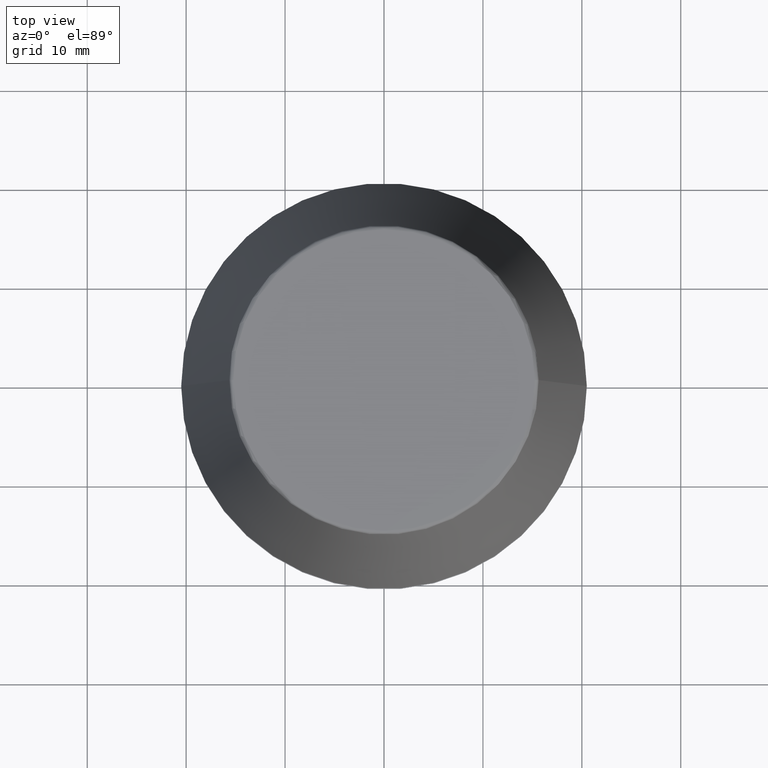
[diagram: clean part render]
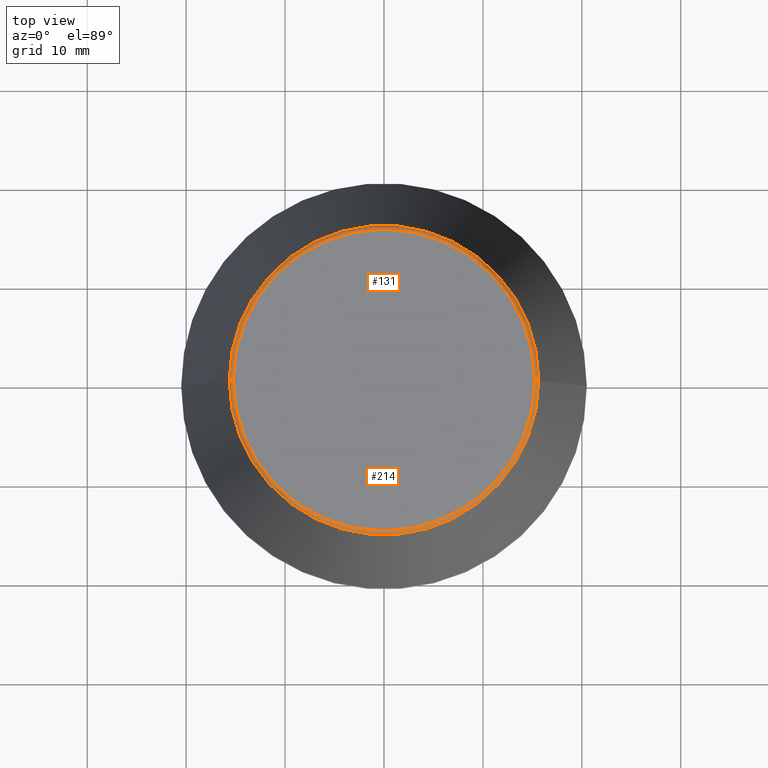
[diagram: same view with one multi-face feature highlighted, each face labeled with its STEP entity id]
A machine part, top view. The highlighted faces form ONE feature: a constant-radius fillet chain: 2 tangent blend faces with common blend radius 0.4 mm. The faces share edges in the B-rep.
Their STEP definitions:
[1] entity #131 (Torus):
#4 = EDGE_CURVE ( 'NONE', #14, #268, #61, .T. ) ;
#14 = VERTEX_POINT ( 'NONE', #238 ) ;
#24 = ORIENTED_EDGE ( 'NONE', *, *, #133, .T. ) ;
#29 = CARTESIAN_POINT ( 'NONE',  ( -15.24773554530077600, 1.867309052979791600E-015, 45.60000000000000100 ) ) ;
#44 = CARTESIAN_POINT ( 'NONE',  ( 15.24773554530077600, 0.0000000000000000000, 45.60000000000000100 ) ) ;
#50 = CARTESIAN_POINT ( 'NONE',  ( 0.0000000000000000000, 0.0000000000000000000, 46.00000000000000000 ) ) ;
#59 = CIRCLE ( 'NONE', #373, 0.3999999999999975800 ) ;
#61 = CIRCLE ( 'NONE', #386, 15.24773554530077600 ) ;
#73 = ORIENTED_EDGE ( 'NONE', *, *, #367, .F. ) ;
#75 = DIRECTION ( 'NONE',  ( 1.000000000000000000, 0.0000000000000000000, 0.0000000000000000000 ) ) ;
#77 = CIRCLE ( 'NONE', #106, 0.3999999999999975800 ) ;
#78 = DIRECTION ( 'NONE',  ( 0.0000000000000000000, -1.000000000000000000, 0.0000000000000000000 ) ) ;
#82 = ORIENTED_EDGE ( 'NONE', *, *, #85, .T. ) ;
#85 = EDGE_CURVE ( 'NONE', #120, #268, #59, .T. ) ;
#106 = AXIS2_PLACEMENT_3D ( 'NONE', #44, #78, #254 ) ;
#113 = CARTESIAN_POINT ( 'NONE',  ( -15.24773554530077600, 1.891563625393435400E-015, 46.00000000000000000 ) ) ;
#120 = VERTEX_POINT ( 'NONE', #243 ) ;
#123 = EDGE_LOOP ( 'NONE', ( #24, #82, #297, #73 ) ) ;
#131 = ADVANCED_FACE ( 'NONE', ( #222 ), #371, .T. ) ;
#133 = EDGE_CURVE ( 'NONE', #237, #120, #217, .T. ) ;
#149 = DIRECTION ( 'NONE',  ( -1.000000000000000000, 1.224646799147353900E-016, 0.0000000000000000000 ) ) ;
#168 = DIRECTION ( 'NONE',  ( 1.000000000000000000, 0.0000000000000000000, 0.0000000000000000000 ) ) ;
#195 = DIRECTION ( 'NONE',  ( -0.0000000000000000000, -0.0000000000000000000, 1.000000000000000000 ) ) ;
#203 = DIRECTION ( 'NONE',  ( -0.0000000000000000000, -0.0000000000000000000, 1.000000000000000000 ) ) ;
#209 = AXIS2_PLACEMENT_3D ( 'NONE', #379, #203, #168 ) ;
#215 = AXIS2_PLACEMENT_3D ( 'NONE', #301, #387, #75 ) ;
#217 = CIRCLE ( 'NONE', #209, 15.64384277279740400 ) ;
#222 = FACE_OUTER_BOUND ( 'NONE', #123, .T. ) ;
#227 = DIRECTION ( 'NONE',  ( 1.000000000000000000, 0.0000000000000000000, 0.0000000000000000000 ) ) ;
#237 = VERTEX_POINT ( 'NONE', #369 ) ;
#238 = CARTESIAN_POINT ( 'NONE',  ( 15.24773554530077600, 0.0000000000000000000, 46.00000000000000000 ) ) ;
#243 = CARTESIAN_POINT ( 'NONE',  ( -15.64384277279740400, 0.0000000000000000000, 45.65566924038402900 ) ) ;
#254 = DIRECTION ( 'NONE',  ( 0.0000000000000000000, 0.0000000000000000000, -1.000000000000000000 ) ) ;
#268 = VERTEX_POINT ( 'NONE', #113 ) ;
#274 = DIRECTION ( 'NONE',  ( 1.224646799147353200E-016, 1.000000000000000000, 0.0000000000000000000 ) ) ;
#297 = ORIENTED_EDGE ( 'NONE', *, *, #4, .F. ) ;
#301 = CARTESIAN_POINT ( 'NONE',  ( 0.0000000000000000000, 0.0000000000000000000, 45.60000000000000100 ) ) ;
#367 = EDGE_CURVE ( 'NONE', #237, #14, #77, .T. ) ;
#369 = CARTESIAN_POINT ( 'NONE',  ( 15.64384277279740400, 2.213191991290356800E-015, 45.65566924038402900 ) ) ;
#371 = TOROIDAL_SURFACE ( 'NONE', #215, 15.24773554530077600, 0.3999999999999991900 ) ;
#373 = AXIS2_PLACEMENT_3D ( 'NONE', #29, #274, #149 ) ;
#379 = CARTESIAN_POINT ( 'NONE',  ( 0.0000000000000000000, 0.0000000000000000000, 45.65566924038402900 ) ) ;
#386 = AXIS2_PLACEMENT_3D ( 'NONE', #50, #195, #227 ) ;
#387 = DIRECTION ( 'NONE',  ( -0.0000000000000000000, -0.0000000000000000000, 1.000000000000000000 ) ) ;
[2] entity #214 (Torus):
#1 = AXIS2_PLACEMENT_3D ( 'NONE', #111, #240, #364 ) ;
#7 = CIRCLE ( 'NONE', #328, 15.64384277279740400 ) ;
#14 = VERTEX_POINT ( 'NONE', #238 ) ;
#23 = ORIENTED_EDGE ( 'NONE', *, *, #121, .F. ) ;
#29 = CARTESIAN_POINT ( 'NONE',  ( -15.24773554530077600, 1.867309052979791600E-015, 45.60000000000000100 ) ) ;
#36 = CIRCLE ( 'NONE', #182, 15.24773554530077600 ) ;
#44 = CARTESIAN_POINT ( 'NONE',  ( 15.24773554530077600, 0.0000000000000000000, 45.60000000000000100 ) ) ;
#59 = CIRCLE ( 'NONE', #373, 0.3999999999999975800 ) ;
#76 = EDGE_CURVE ( 'NONE', #120, #237, #7, .T. ) ;
#77 = CIRCLE ( 'NONE', #106, 0.3999999999999975800 ) ;
#78 = DIRECTION ( 'NONE',  ( 0.0000000000000000000, -1.000000000000000000, 0.0000000000000000000 ) ) ;
#84 = DIRECTION ( 'NONE',  ( -0.0000000000000000000, -0.0000000000000000000, 1.000000000000000000 ) ) ;
#85 = EDGE_CURVE ( 'NONE', #120, #268, #59, .T. ) ;
#87 = ORIENTED_EDGE ( 'NONE', *, *, #85, .F. ) ;
#102 = DIRECTION ( 'NONE',  ( 1.000000000000000000, 0.0000000000000000000, 0.0000000000000000000 ) ) ;
#106 = AXIS2_PLACEMENT_3D ( 'NONE', #44, #78, #254 ) ;
#111 = CARTESIAN_POINT ( 'NONE',  ( 0.0000000000000000000, 0.0000000000000000000, 45.60000000000000100 ) ) ;
#113 = CARTESIAN_POINT ( 'NONE',  ( -15.24773554530077600, 1.891563625393435400E-015, 46.00000000000000000 ) ) ;
#117 = CARTESIAN_POINT ( 'NONE',  ( 0.0000000000000000000, 0.0000000000000000000, 45.65566924038402900 ) ) ;
#120 = VERTEX_POINT ( 'NONE', #243 ) ;
#121 = EDGE_CURVE ( 'NONE', #268, #14, #36, .T. ) ;
#149 = DIRECTION ( 'NONE',  ( -1.000000000000000000, 1.224646799147353900E-016, 0.0000000000000000000 ) ) ;
#165 = EDGE_LOOP ( 'NONE', ( #87, #187, #277, #23 ) ) ;
#172 = DIRECTION ( 'NONE',  ( -0.0000000000000000000, -0.0000000000000000000, 1.000000000000000000 ) ) ;
#181 = TOROIDAL_SURFACE ( 'NONE', #1, 15.24773554530077600, 0.3999999999999991900 ) ;
#182 = AXIS2_PLACEMENT_3D ( 'NONE', #262, #172, #102 ) ;
#187 = ORIENTED_EDGE ( 'NONE', *, *, #76, .T. ) ;
#214 = ADVANCED_FACE ( 'NONE', ( #330 ), #181, .T. ) ;
#218 = DIRECTION ( 'NONE',  ( 1.000000000000000000, 0.0000000000000000000, 0.0000000000000000000 ) ) ;
#237 = VERTEX_POINT ( 'NONE', #369 ) ;
#238 = CARTESIAN_POINT ( 'NONE',  ( 15.24773554530077600, 0.0000000000000000000, 46.00000000000000000 ) ) ;
#240 = DIRECTION ( 'NONE',  ( -0.0000000000000000000, -0.0000000000000000000, 1.000000000000000000 ) ) ;
#243 = CARTESIAN_POINT ( 'NONE',  ( -15.64384277279740400, 0.0000000000000000000, 45.65566924038402900 ) ) ;
#254 = DIRECTION ( 'NONE',  ( 0.0000000000000000000, 0.0000000000000000000, -1.000000000000000000 ) ) ;
#262 = CARTESIAN_POINT ( 'NONE',  ( 0.0000000000000000000, 0.0000000000000000000, 46.00000000000000000 ) ) ;
#268 = VERTEX_POINT ( 'NONE', #113 ) ;
#274 = DIRECTION ( 'NONE',  ( 1.224646799147353200E-016, 1.000000000000000000, 0.0000000000000000000 ) ) ;
#277 = ORIENTED_EDGE ( 'NONE', *, *, #367, .T. ) ;
#328 = AXIS2_PLACEMENT_3D ( 'NONE', #117, #84, #218 ) ;
#330 = FACE_OUTER_BOUND ( 'NONE', #165, .T. ) ;
#364 = DIRECTION ( 'NONE',  ( 1.000000000000000000, 0.0000000000000000000, 0.0000000000000000000 ) ) ;
#367 = EDGE_CURVE ( 'NONE', #237, #14, #77, .T. ) ;
#369 = CARTESIAN_POINT ( 'NONE',  ( 15.64384277279740400, 2.213191991290356800E-015, 45.65566924038402900 ) ) ;
#373 = AXIS2_PLACEMENT_3D ( 'NONE', #29, #274, #149 ) ;